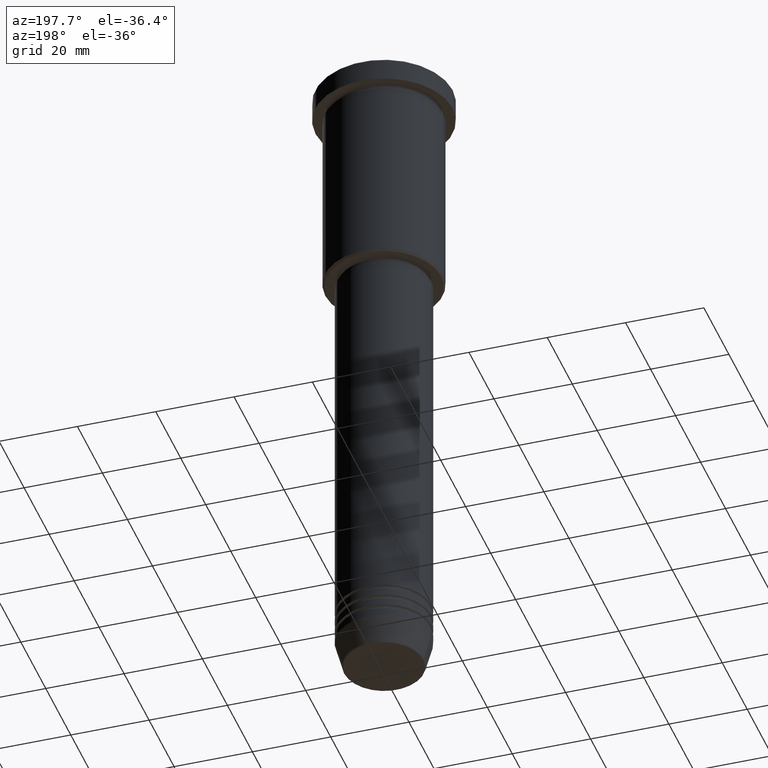
[diagram: clean part render]
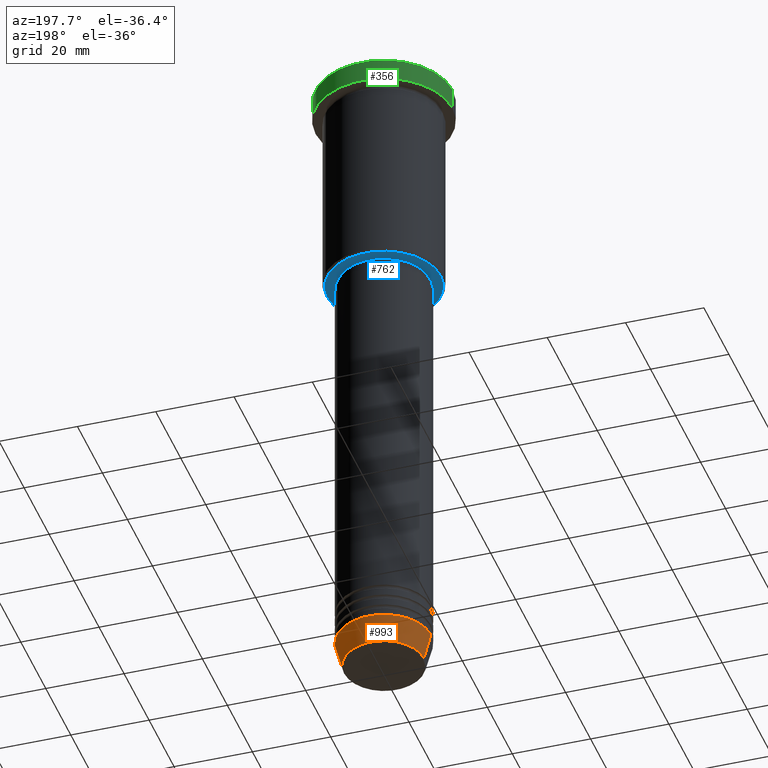
[diagram: same view with three faces highlighted in distinct colors, each labeled with its STEP entity id]
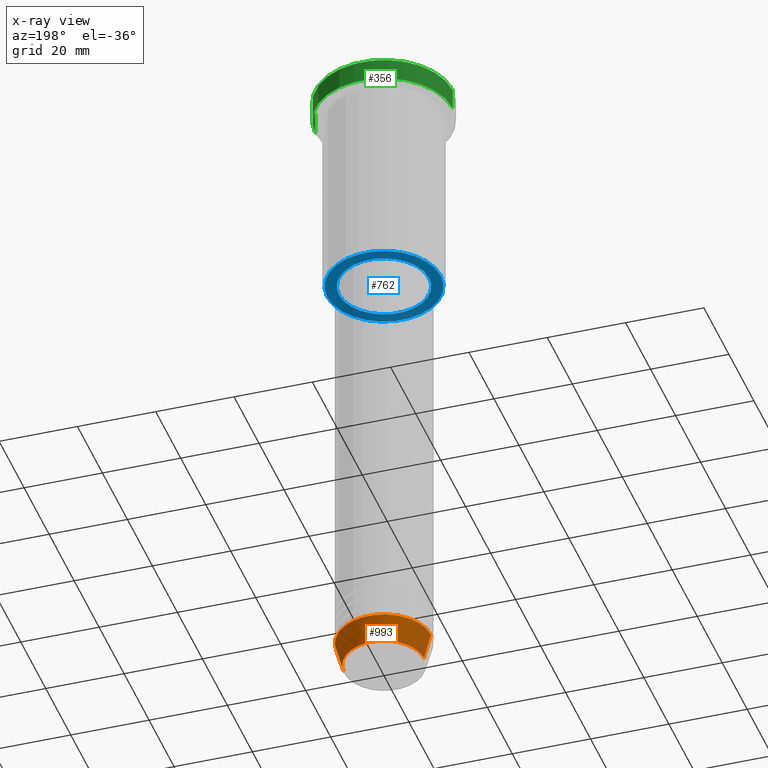
[diagram: x-ray of the same camera — body ghosted, the three highlighted faces saturated]
A machine part, auxiliary view with three faces highlighted in distinct colors.
The next image is the same camera in x-ray (body ghosted, the three faces saturated) — at least one of them is partly hidden behind the body in this view.
Their STEP definitions:

[orange] entity #993 — the highlighted conical surface has half-angle 15 deg.
#20 = FACE_OUTER_BOUND ( 'NONE', #322, .T. ) ;
#73 = AXIS2_PLACEMENT_3D ( 'NONE', #1003, #1084, #371 ) ;
#76 = VECTOR ( 'NONE', #348, 1000.000000000000000 ) ;
#85 = CARTESIAN_POINT ( 'NONE',  ( 0.000000000000000000, 0.000000000000000000, -170.6294095225512706 ) ) ;
#167 = CARTESIAN_POINT ( 'NONE',  ( 12.00000000000000000, 0.000000000000000000, -164.0000000000000000 ) ) ;
#197 = CARTESIAN_POINT ( 'NONE',  ( -12.00000000000000000, 1.469576158976823947E-15, -164.0000000000000000 ) ) ;
#247 = EDGE_CURVE ( 'NONE', #651, #250, #780, .T. ) ;
#250 = VERTEX_POINT ( 'NONE', #197 ) ;
#274 = DIRECTION ( 'NONE',  ( 1.000000000000000000, 0.000000000000000000, 0.000000000000000000 ) ) ;
#297 = EDGE_CURVE ( 'NONE', #731, #775, #537, .T. ) ;
#322 = EDGE_LOOP ( 'NONE', ( #890, #894, #697, #584 ) ) ;
#341 = DIRECTION ( 'NONE',  ( -0.2588190451025213501, 3.169619151431772337E-17, 0.9659258262890680902 ) ) ;
#348 = DIRECTION ( 'NONE',  ( 0.2588190451025213501, 0.000000000000000000, 0.9659258262890680902 ) ) ;
#371 = DIRECTION ( 'NONE',  ( 1.000000000000000000, 0.000000000000000000, 0.000000000000000000 ) ) ;
#381 = EDGE_CURVE ( 'NONE', #775, #250, #1076, .T. ) ;
#388 = DIRECTION ( 'NONE',  ( 1.000000000000000000, 0.000000000000000000, 0.000000000000000000 ) ) ;
#418 = AXIS2_PLACEMENT_3D ( 'NONE', #481, #841, #388 ) ;
#447 = DIRECTION ( 'NONE',  ( -0.000000000000000000, -0.000000000000000000, 1.000000000000000000 ) ) ;
#481 = CARTESIAN_POINT ( 'NONE',  ( 0.000000000000000000, 0.000000000000000000, -164.0000000000000000 ) ) ;
#537 = CIRCLE ( 'NONE', #851, 10.22365507213719660 ) ;
#584 = ORIENTED_EDGE ( 'NONE', *, *, #829, .F. ) ;
#602 = CARTESIAN_POINT ( 'NONE',  ( 12.00000000000000000, 0.000000000000000000, -164.0000000000000000 ) ) ;
#651 = VERTEX_POINT ( 'NONE', #602 ) ;
#697 = ORIENTED_EDGE ( 'NONE', *, *, #247, .F. ) ;
#731 = VERTEX_POINT ( 'NONE', #991 ) ;
#775 = VERTEX_POINT ( 'NONE', #888 ) ;
#780 = CIRCLE ( 'NONE', #73, 12.00000000000000000 ) ;
#829 = EDGE_CURVE ( 'NONE', #731, #651, #999, .T. ) ;
#841 = DIRECTION ( 'NONE',  ( -0.000000000000000000, -0.000000000000000000, 1.000000000000000000 ) ) ;
#851 = AXIS2_PLACEMENT_3D ( 'NONE', #85, #447, #274 ) ;
#877 = VECTOR ( 'NONE', #341, 1000.000000000000000 ) ;
#888 = CARTESIAN_POINT ( 'NONE',  ( -10.22365507213719837, 1.360806402472383336E-15, -170.6294095225512706 ) ) ;
#890 = ORIENTED_EDGE ( 'NONE', *, *, #297, .T. ) ;
#894 = ORIENTED_EDGE ( 'NONE', *, *, #381, .T. ) ;
#991 = CARTESIAN_POINT ( 'NONE',  ( 10.22365507213719660, 0.000000000000000000, -170.6294095225512706 ) ) ;
#993 = ADVANCED_FACE ( 'NONE', ( #20 ), #1085, .T. ) ;
#999 = LINE ( 'NONE', #167, #76 ) ;
#1003 = CARTESIAN_POINT ( 'NONE',  ( 0.000000000000000000, 0.000000000000000000, -164.0000000000000000 ) ) ;
#1076 = LINE ( 'NONE', #1156, #877 ) ;
#1084 = DIRECTION ( 'NONE',  ( -0.000000000000000000, -0.000000000000000000, 1.000000000000000000 ) ) ;
#1085 = CONICAL_SURFACE ( 'NONE', #418, 12.00000000000000000, 0.2617993877991500740 ) ;
#1156 = CARTESIAN_POINT ( 'NONE',  ( -12.00000000000000000, 1.469576158976823947E-15, -164.0000000000000000 ) ) ;

[blue] entity #762 — the highlighted planar face has unit normal (0, 0, -1).
#10 = AXIS2_PLACEMENT_3D ( 'NONE', #335, #499, #857 ) ;
#43 = CARTESIAN_POINT ( 'NONE',  ( 0.000000000000000000, 0.000000000000000000, -55.99999999999999289 ) ) ;
#51 = DIRECTION ( 'NONE',  ( 1.000000000000000000, 0.000000000000000000, 0.000000000000000000 ) ) ;
#147 = DIRECTION ( 'NONE',  ( 0.000000000000000000, 0.000000000000000000, -1.000000000000000000 ) ) ;
#161 = AXIS2_PLACEMENT_3D ( 'NONE', #864, #147, #228 ) ;
#189 = CARTESIAN_POINT ( 'NONE',  ( 11.50000000000000000, 0.000000000000000000, -55.99999999999999289 ) ) ;
#198 = CARTESIAN_POINT ( 'NONE',  ( -11.50000000000000000, 1.408343819019456176E-15, -55.99999999999999289 ) ) ;
#212 = ORIENTED_EDGE ( 'NONE', *, *, #708, .T. ) ;
#228 = DIRECTION ( 'NONE',  ( -1.000000000000000000, 0.000000000000000000, 0.000000000000000000 ) ) ;
#240 = EDGE_CURVE ( 'NONE', #278, #421, #256, .T. ) ;
#256 = CIRCLE ( 'NONE', #269, 11.50000000000000000 ) ;
#258 = VERTEX_POINT ( 'NONE', #1097 ) ;
#265 = CARTESIAN_POINT ( 'NONE',  ( 0.000000000000000000, 0.000000000000000000, -55.99999999999999289 ) ) ;
#269 = AXIS2_PLACEMENT_3D ( 'NONE', #265, #1011, #290 ) ;
#271 = AXIS2_PLACEMENT_3D ( 'NONE', #454, #1171, #913 ) ;
#275 = PLANE ( 'NONE',  #271 ) ;
#278 = VERTEX_POINT ( 'NONE', #189 ) ;
#290 = DIRECTION ( 'NONE',  ( 1.000000000000000000, 0.000000000000000000, 0.000000000000000000 ) ) ;
#335 = CARTESIAN_POINT ( 'NONE',  ( 0.000000000000000000, 0.000000000000000000, -55.99999999999999289 ) ) ;
#421 = VERTEX_POINT ( 'NONE', #198 ) ;
#435 = CARTESIAN_POINT ( 'NONE',  ( 14.50000000000001066, 0.000000000000000000, -55.99999999999999289 ) ) ;
#451 = ORIENTED_EDGE ( 'NONE', *, *, #240, .T. ) ;
#454 = CARTESIAN_POINT ( 'NONE',  ( 0.000000000000000000, 15.00000000000000000, -55.99999999999999289 ) ) ;
#480 = EDGE_LOOP ( 'NONE', ( #451, #212 ) ) ;
#499 = DIRECTION ( 'NONE',  ( 0.000000000000000000, 0.000000000000000000, -1.000000000000000000 ) ) ;
#552 = ORIENTED_EDGE ( 'NONE', *, *, #1138, .T. ) ;
#567 = EDGE_LOOP ( 'NONE', ( #973, #552 ) ) ;
#575 = CIRCLE ( 'NONE', #161, 14.50000000000001066 ) ;
#708 = EDGE_CURVE ( 'NONE', #421, #278, #836, .T. ) ;
#762 = ADVANCED_FACE ( 'NONE', ( #995, #1072 ), #275, .T. ) ;
#766 = VERTEX_POINT ( 'NONE', #435 ) ;
#817 = CIRCLE ( 'NONE', #10, 14.50000000000001066 ) ;
#836 = CIRCLE ( 'NONE', #1043, 11.50000000000000000 ) ;
#857 = DIRECTION ( 'NONE',  ( -1.000000000000000000, 0.000000000000000000, 0.000000000000000000 ) ) ;
#864 = CARTESIAN_POINT ( 'NONE',  ( 0.000000000000000000, 0.000000000000000000, -55.99999999999999289 ) ) ;
#913 = DIRECTION ( 'NONE',  ( -1.000000000000000000, 0.000000000000000000, -0.000000000000000000 ) ) ;
#960 = DIRECTION ( 'NONE',  ( -0.000000000000000000, -0.000000000000000000, 1.000000000000000000 ) ) ;
#973 = ORIENTED_EDGE ( 'NONE', *, *, #1056, .T. ) ;
#995 = FACE_OUTER_BOUND ( 'NONE', #567, .T. ) ;
#1011 = DIRECTION ( 'NONE',  ( -0.000000000000000000, -0.000000000000000000, 1.000000000000000000 ) ) ;
#1043 = AXIS2_PLACEMENT_3D ( 'NONE', #43, #960, #51 ) ;
#1056 = EDGE_CURVE ( 'NONE', #766, #258, #575, .T. ) ;
#1072 = FACE_BOUND ( 'NONE', #480, .T. ) ;
#1097 = CARTESIAN_POINT ( 'NONE',  ( -14.50000000000001066, 1.806354028742346591E-15, -55.99999999999999289 ) ) ;
#1138 = EDGE_CURVE ( 'NONE', #258, #766, #817, .T. ) ;
#1171 = DIRECTION ( 'NONE',  ( 0.000000000000000000, 0.000000000000000000, -1.000000000000000000 ) ) ;

[green] entity #356 — the highlighted cylindrical surface (partial cylindrical patch) has radius 17.5 mm, axis along (-0, -0, 1).
#50 = DIRECTION ( 'NONE',  ( -0.000000000000000000, -0.000000000000000000, 1.000000000000000000 ) ) ;
#101 = DIRECTION ( 'NONE',  ( 1.000000000000000000, 0.000000000000000000, 0.000000000000000000 ) ) ;
#196 = ORIENTED_EDGE ( 'NONE', *, *, #561, .F. ) ;
#201 = VERTEX_POINT ( 'NONE', #1111 ) ;
#217 = VECTOR ( 'NONE', #439, 1000.000000000000000 ) ;
#230 = ORIENTED_EDGE ( 'NONE', *, *, #277, .T. ) ;
#237 = CARTESIAN_POINT ( 'NONE',  ( -17.50000000000000000, 2.143131898507868248E-15, 0.000000000000000000 ) ) ;
#242 = EDGE_LOOP ( 'NONE', ( #230, #830, #650, #196 ) ) ;
#254 = LINE ( 'NONE', #237, #1159 ) ;
#277 = EDGE_CURVE ( 'NONE', #422, #331, #379, .T. ) ;
#293 = CARTESIAN_POINT ( 'NONE',  ( 17.50000000000000000, 0.000000000000000000, 0.000000000000000000 ) ) ;
#328 = EDGE_CURVE ( 'NONE', #331, #1121, #254, .T. ) ;
#331 = VERTEX_POINT ( 'NONE', #704 ) ;
#356 = ADVANCED_FACE ( 'NONE', ( #866 ), #778, .T. ) ;
#378 = LINE ( 'NONE', #293, #217 ) ;
#379 = CIRCLE ( 'NONE', #722, 17.50000000000000000 ) ;
#416 = CIRCLE ( 'NONE', #967, 17.50000000000000000 ) ;
#422 = VERTEX_POINT ( 'NONE', #1012 ) ;
#439 = DIRECTION ( 'NONE',  ( -0.000000000000000000, -0.000000000000000000, 1.000000000000000000 ) ) ;
#530 = DIRECTION ( 'NONE',  ( 1.000000000000000000, 0.000000000000000000, 0.000000000000000000 ) ) ;
#543 = DIRECTION ( 'NONE',  ( -0.000000000000000000, -0.000000000000000000, 1.000000000000000000 ) ) ;
#561 = EDGE_CURVE ( 'NONE', #422, #201, #378, .T. ) ;
#618 = CARTESIAN_POINT ( 'NONE',  ( 0.000000000000000000, 0.000000000000000000, 0.000000000000000000 ) ) ;
#638 = DIRECTION ( 'NONE',  ( 1.000000000000000000, 0.000000000000000000, 0.000000000000000000 ) ) ;
#650 = ORIENTED_EDGE ( 'NONE', *, *, #767, .T. ) ;
#692 = CARTESIAN_POINT ( 'NONE',  ( -17.50000000000000000, 2.143131898507868248E-15, -0.4999999999999727995 ) ) ;
#704 = CARTESIAN_POINT ( 'NONE',  ( -17.50000000000000000, 2.143131898507868248E-15, -5.999999999999995559 ) ) ;
#722 = AXIS2_PLACEMENT_3D ( 'NONE', #1091, #543, #638 ) ;
#767 = EDGE_CURVE ( 'NONE', #1121, #201, #416, .T. ) ;
#778 = CYLINDRICAL_SURFACE ( 'NONE', #930, 17.50000000000000000 ) ;
#830 = ORIENTED_EDGE ( 'NONE', *, *, #328, .T. ) ;
#866 = FACE_OUTER_BOUND ( 'NONE', #242, .T. ) ;
#930 = AXIS2_PLACEMENT_3D ( 'NONE', #618, #975, #530 ) ;
#967 = AXIS2_PLACEMENT_3D ( 'NONE', #976, #1077, #101 ) ;
#975 = DIRECTION ( 'NONE',  ( -0.000000000000000000, -0.000000000000000000, 1.000000000000000000 ) ) ;
#976 = CARTESIAN_POINT ( 'NONE',  ( 0.000000000000000000, 0.000000000000000000, -0.4999999999999727995 ) ) ;
#1012 = CARTESIAN_POINT ( 'NONE',  ( 17.50000000000000000, 0.000000000000000000, -5.999999999999995559 ) ) ;
#1077 = DIRECTION ( 'NONE',  ( 0.000000000000000000, 0.000000000000000000, -1.000000000000000000 ) ) ;
#1091 = CARTESIAN_POINT ( 'NONE',  ( 0.000000000000000000, 0.000000000000000000, -5.999999999999995559 ) ) ;
#1111 = CARTESIAN_POINT ( 'NONE',  ( 17.50000000000000000, 0.000000000000000000, -0.4999999999999727995 ) ) ;
#1121 = VERTEX_POINT ( 'NONE', #692 ) ;
#1159 = VECTOR ( 'NONE', #50, 1000.000000000000000 ) ;